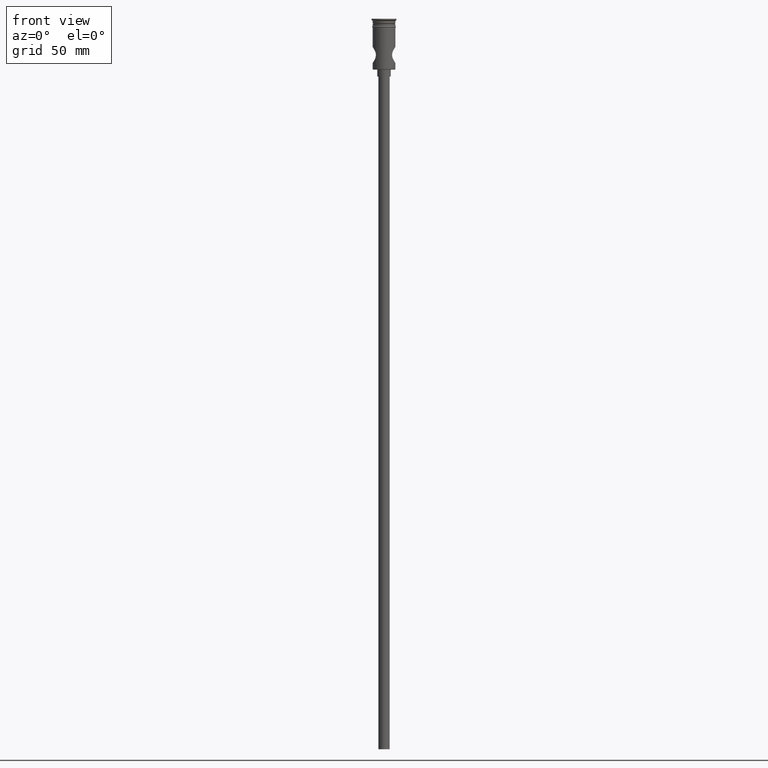
[diagram: clean part render]
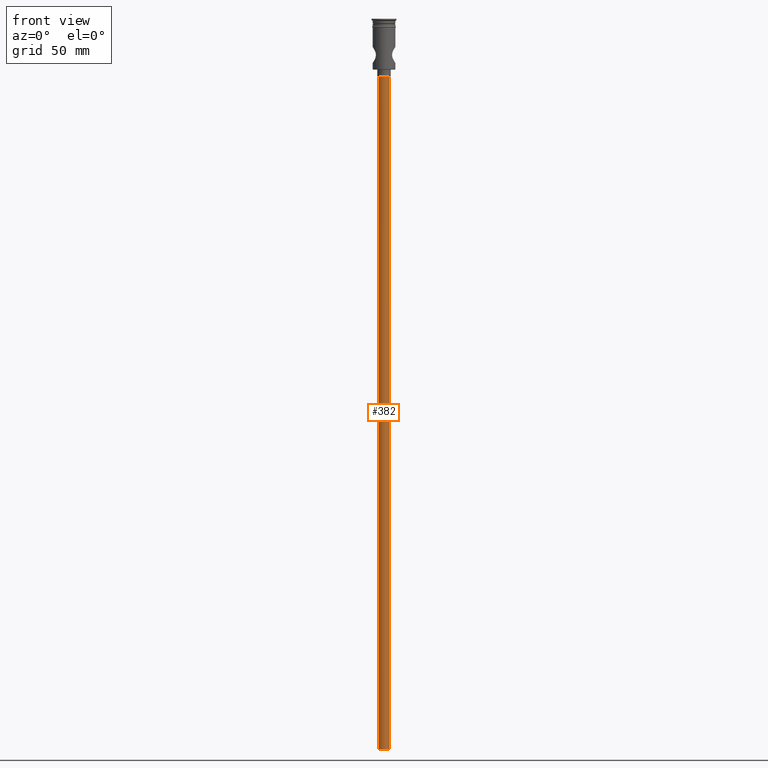
[diagram: same view with one face highlighted and labeled with its STEP entity id]
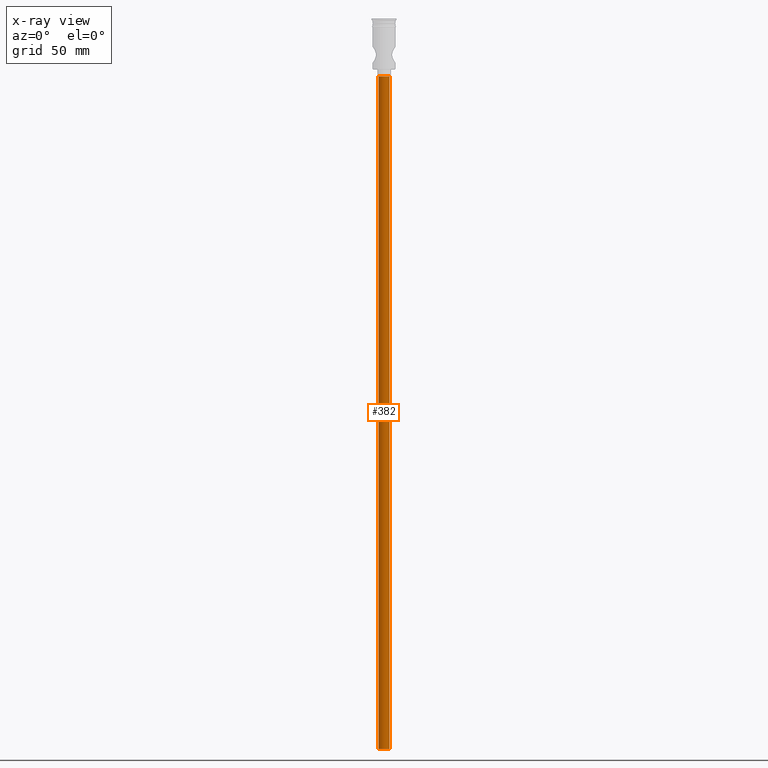
[diagram: x-ray of the same camera — body ghosted, the highlighted face saturated]
A machine part, front view. The second image highlights one B-rep face of the part: STEP entity #382.
The next image is the same camera in x-ray: the body ghosted, the highlighted face saturated — about 0% of this face is hidden behind the body in this view.
In plain terms, the highlighted cylindrical surface (edge-blend (fillet) strip) has radius 2.5 mm, axis along (-0, -0, 1).
Its self-contained STEP definition (entity closure, byte-faithful):
#99 = DIRECTION ( 'NONE',  ( 0.000000000000000000, 0.000000000000000000, -1.000000000000000000 ) ) ;
#110 = DIRECTION ( 'NONE',  ( -0.000000000000000000, -0.000000000000000000, 1.000000000000000000 ) ) ;
#157 = ORIENTED_EDGE ( 'NONE', *, *, #1252, .F. ) ;
#160 = AXIS2_PLACEMENT_3D ( 'NONE', #527, #213, #417 ) ;
#201 = VERTEX_POINT ( 'NONE', #972 ) ;
#211 = DIRECTION ( 'NONE',  ( 1.000000000000000000, 0.000000000000000000, 0.000000000000000000 ) ) ;
#213 = DIRECTION ( 'NONE',  ( 0.000000000000000000, 0.000000000000000000, -1.000000000000000000 ) ) ;
#217 = LINE ( 'NONE', #319, #773 ) ;
#319 = CARTESIAN_POINT ( 'NONE',  ( -2.500000000000000000, 3.061616997868383141E-16, -322.5000000000000000 ) ) ;
#377 = CARTESIAN_POINT ( 'NONE',  ( 0.000000000000000000, 0.000000000000000000, -322.5000000000000000 ) ) ;
#382 = ADVANCED_FACE ( 'NONE', ( #1141 ), #924, .T. ) ;
#417 = DIRECTION ( 'NONE',  ( -1.000000000000000000, 0.000000000000000000, 0.000000000000000000 ) ) ;
#454 = CARTESIAN_POINT ( 'NONE',  ( 2.500000000000000000, 0.000000000000000000, -25.50000000000000000 ) ) ;
#474 = EDGE_LOOP ( 'NONE', ( #157, #862, #757, #732 ) ) ;
#482 = DIRECTION ( 'NONE',  ( -0.000000000000000000, -0.000000000000000000, 1.000000000000000000 ) ) ;
#527 = CARTESIAN_POINT ( 'NONE',  ( 0.000000000000000000, 0.000000000000000000, -322.5000000000000000 ) ) ;
#633 = EDGE_CURVE ( 'NONE', #1366, #1353, #1411, .T. ) ;
#699 = EDGE_CURVE ( 'NONE', #1353, #201, #1327, .T. ) ;
#711 = VERTEX_POINT ( 'NONE', #1444 ) ;
#732 = ORIENTED_EDGE ( 'NONE', *, *, #699, .T. ) ;
#757 = ORIENTED_EDGE ( 'NONE', *, *, #633, .T. ) ;
#771 = VECTOR ( 'NONE', #110, 1000.000000000000000 ) ;
#773 = VECTOR ( 'NONE', #1093, 1000.000000000000000 ) ;
#839 = CARTESIAN_POINT ( 'NONE',  ( 2.500000000000000000, 0.000000000000000000, -322.5000000000000000 ) ) ;
#862 = ORIENTED_EDGE ( 'NONE', *, *, #1056, .F. ) ;
#880 = DIRECTION ( 'NONE',  ( -1.000000000000000000, 0.000000000000000000, 0.000000000000000000 ) ) ;
#890 = AXIS2_PLACEMENT_3D ( 'NONE', #377, #482, #211 ) ;
#924 = CYLINDRICAL_SURFACE ( 'NONE', #890, 2.500000000000000000 ) ;
#946 = CIRCLE ( 'NONE', #160, 2.500000000000000000 ) ;
#972 = CARTESIAN_POINT ( 'NONE',  ( -2.500000000000000000, 3.061616997868383141E-16, -25.50000000000000000 ) ) ;
#1056 = EDGE_CURVE ( 'NONE', #1366, #711, #946, .T. ) ;
#1093 = DIRECTION ( 'NONE',  ( -0.000000000000000000, -0.000000000000000000, 1.000000000000000000 ) ) ;
#1105 = AXIS2_PLACEMENT_3D ( 'NONE', #1113, #99, #880 ) ;
#1113 = CARTESIAN_POINT ( 'NONE',  ( 0.000000000000000000, 0.000000000000000000, -25.50000000000000000 ) ) ;
#1141 = FACE_OUTER_BOUND ( 'NONE', #474, .T. ) ;
#1252 = EDGE_CURVE ( 'NONE', #711, #201, #217, .T. ) ;
#1327 = CIRCLE ( 'NONE', #1105, 2.500000000000000000 ) ;
#1353 = VERTEX_POINT ( 'NONE', #454 ) ;
#1366 = VERTEX_POINT ( 'NONE', #1368 ) ;
#1368 = CARTESIAN_POINT ( 'NONE',  ( 2.500000000000000000, 0.000000000000000000, -322.5000000000000000 ) ) ;
#1411 = LINE ( 'NONE', #839, #771 ) ;
#1444 = CARTESIAN_POINT ( 'NONE',  ( -2.500000000000000000, 3.061616997868383141E-16, -322.5000000000000000 ) ) ;